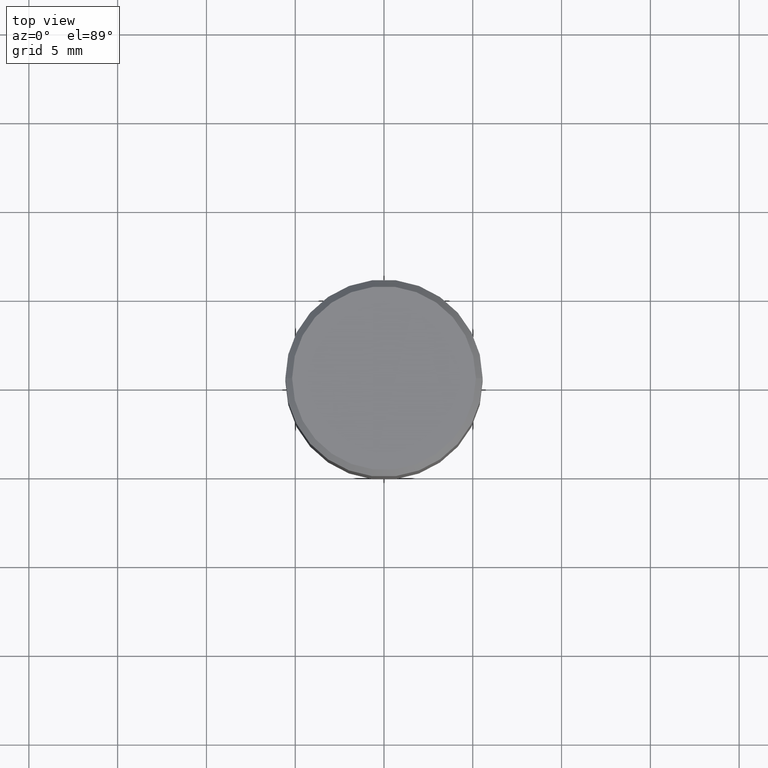
[diagram: clean part render]
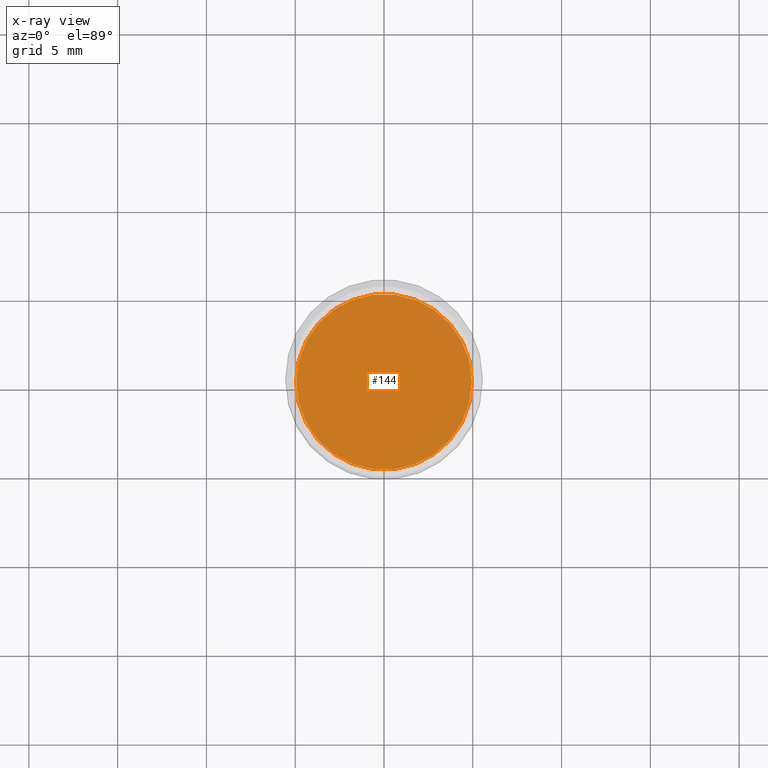
[diagram: x-ray — body ghosted, one internal face saturated and labeled with its STEP entity id]
A machine part, top view, then the same camera in x-ray: the body is ghosted and one INTERNAL B-rep face — a face not visible from any outside direction — is saturated and labeled: STEP entity #144.
In plain terms, the highlighted planar face has unit normal (-0, 0, 1).
Its self-contained STEP definition (entity closure, byte-faithful):
#55 = DIRECTION ( 'NONE',  ( 1.000000000000000000, -6.982962677686265922E-15, 4.876176775795935793E-29 ) ) ;
#96 = EDGE_LOOP ( 'NONE', ( #277, #266 ) ) ;
#98 = CARTESIAN_POINT ( 'NONE',  ( -0.1948000000000000009, -3.589541929867870625E-16, -0.5000000000000001110 ) ) ;
#103 = DIRECTION ( 'NONE',  ( -2.445468806185136597E-29, 3.491481338843145583E-15, 1.000000000000000000 ) ) ;
#107 = DIRECTION ( 'NONE',  ( 1.000000000000000000, -6.982962677686267499E-15, 0.000000000000000000 ) ) ;
#124 = DIRECTION ( 'NONE',  ( -2.438088387897960049E-29, 3.491481338843145188E-15, 1.000000000000000000 ) ) ;
#127 = FACE_OUTER_BOUND ( 'NONE', #96, .T. ) ;
#144 = ADVANCED_FACE ( 'NONE', ( #127 ), #333, .F. ) ;
#146 = AXIS2_PLACEMENT_3D ( 'NONE', #308, #124, #55 ) ;
#194 = EDGE_CURVE ( 'NONE', #426, #312, #350, .T. ) ;
#218 = AXIS2_PLACEMENT_3D ( 'NONE', #418, #103, #107 ) ;
#261 = AXIS2_PLACEMENT_3D ( 'NONE', #297, #466, #289 ) ;
#266 = ORIENTED_EDGE ( 'NONE', *, *, #194, .F. ) ;
#277 = ORIENTED_EDGE ( 'NONE', *, *, #444, .F. ) ;
#283 = CIRCLE ( 'NONE', #218, 0.1948000000000000009 ) ;
#289 = DIRECTION ( 'NONE',  ( 1.000000000000000000, -6.982962677686267499E-15, 0.000000000000000000 ) ) ;
#297 = CARTESIAN_POINT ( 'NONE',  ( 1.222734403092568719E-29, -1.745740669421573186E-15, -0.5000000000000001110 ) ) ;
#308 = CARTESIAN_POINT ( 'NONE',  ( 1.222734403092568719E-29, -1.745740669421573186E-15, -0.5000000000000001110 ) ) ;
#312 = VERTEX_POINT ( 'NONE', #412 ) ;
#333 = PLANE ( 'NONE',  #146 ) ;
#350 = CIRCLE ( 'NONE', #261, 0.1948000000000000009 ) ;
#412 = CARTESIAN_POINT ( 'NONE',  ( 0.1948000000000000009, -3.106021799034858268E-15, -0.5000000000000001110 ) ) ;
#418 = CARTESIAN_POINT ( 'NONE',  ( 1.222734403092568719E-29, -1.745740669421573186E-15, -0.5000000000000001110 ) ) ;
#426 = VERTEX_POINT ( 'NONE', #98 ) ;
#444 = EDGE_CURVE ( 'NONE', #312, #426, #283, .T. ) ;
#466 = DIRECTION ( 'NONE',  ( -2.445468806185136597E-29, 3.491481338843145583E-15, 1.000000000000000000 ) ) ;